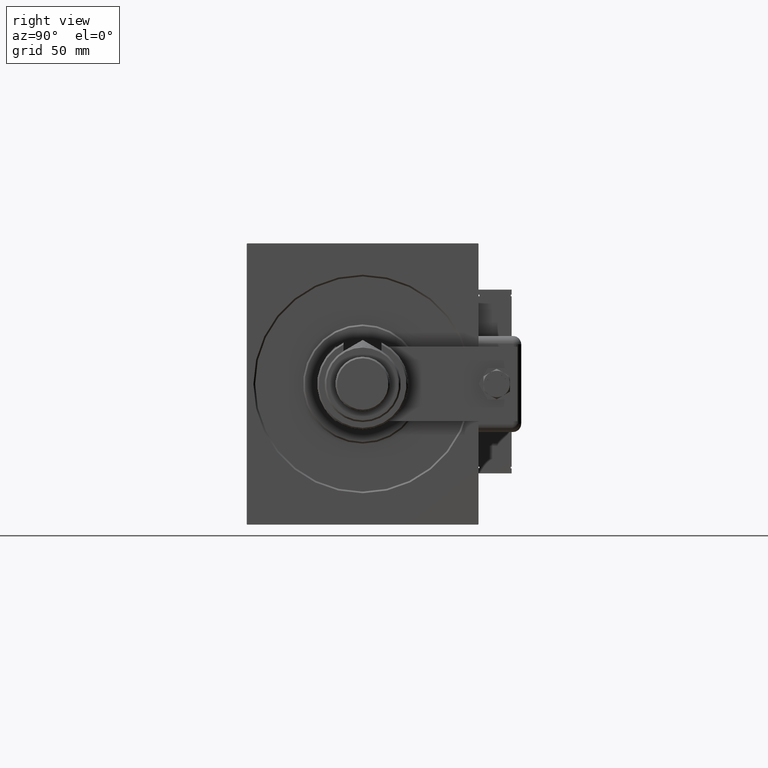
[diagram: clean part render]
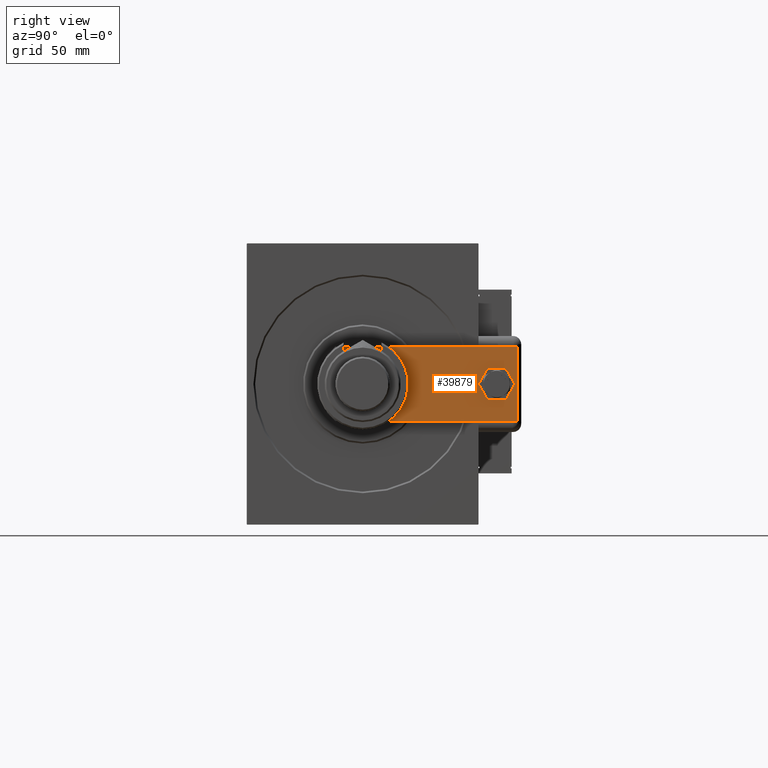
[diagram: same view with one face highlighted and labeled with its STEP entity id]
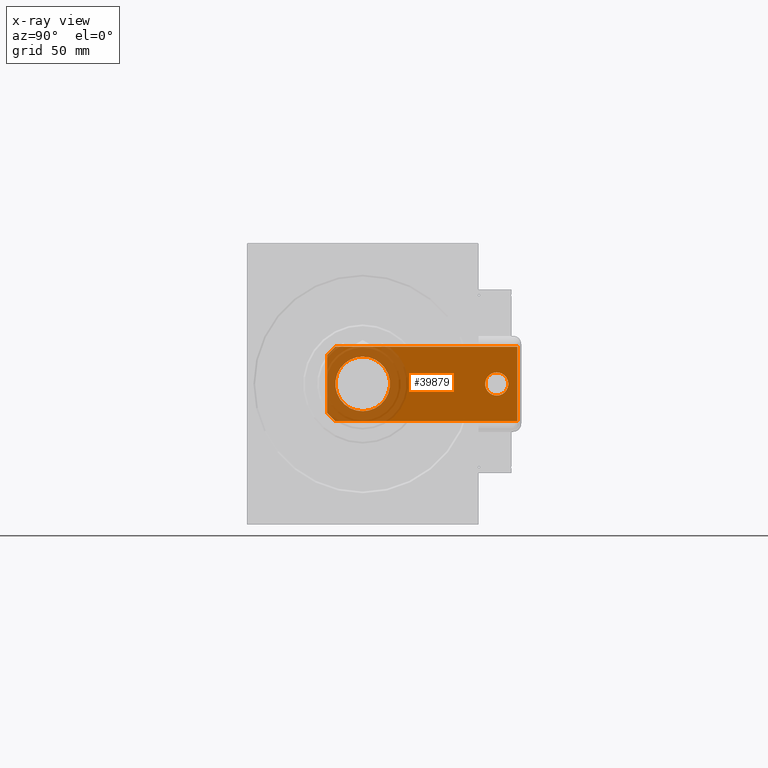
[diagram: x-ray of the same camera — body ghosted, the highlighted face saturated]
A machine part, right view. The second image highlights one B-rep face of the part: STEP entity #39879.
The next image is the same camera in x-ray: the body ghosted, the highlighted face saturated — about 28% of this face is hidden behind the body in this view.
In plain terms, the highlighted planar face has unit normal (-1, 0, 0).
Its self-contained STEP definition (entity closure, byte-faithful):
#1546 = ORIENTED_EDGE ( 'NONE', *, *, #56429, .F. ) ;
#2515 = EDGE_CURVE ( 'NONE', #20984, #60280, #4227, .T. ) ;
#4227 = CIRCLE ( 'NONE', #59901, 16.50000000000000000 ) ;
#4999 = EDGE_CURVE ( 'NONE', #31560, #60893, #5644, .T. ) ;
#5644 = LINE ( 'NONE', #15295, #40098 ) ;
#6050 = ORIENTED_EDGE ( 'NONE', *, *, #18612, .T. ) ;
#6167 = DIRECTION ( 'NONE',  ( 0.000000000000000000, 0.000000000000000000, 1.000000000000000000 ) ) ;
#6882 = VECTOR ( 'NONE', #52410, 1000.000000000000114 ) ;
#7339 = CARTESIAN_POINT ( 'NONE',  ( 7.000000000000000000, 102.5000000000000142, 0.000000000000000000 ) ) ;
#7696 = VERTEX_POINT ( 'NONE', #7339 ) ;
#7808 = EDGE_LOOP ( 'NONE', ( #6050, #15698 ) ) ;
#8807 = CARTESIAN_POINT ( 'NONE',  ( -17.50000000000000355, 0.000000000000000000, 0.000000000000000000 ) ) ;
#9616 = DIRECTION ( 'NONE',  ( 1.000000000000000000, 0.000000000000000000, 0.000000000000000000 ) ) ;
#9797 = VECTOR ( 'NONE', #19255, 1000.000000000000000 ) ;
#10104 = CIRCLE ( 'NONE', #15085, 7.000000000000000000 ) ;
#10633 = DIRECTION ( 'NONE',  ( -9.050731179009427836E-17, 1.000000000000000000, 0.000000000000000000 ) ) ;
#10839 = LINE ( 'NONE', #34479, #9797 ) ;
#10850 = PLANE ( 'NONE',  #49924 ) ;
#11503 = VECTOR ( 'NONE', #14786, 1000.000000000000000 ) ;
#11566 = LINE ( 'NONE', #38937, #49972 ) ;
#13465 = CARTESIAN_POINT ( 'NONE',  ( -22.50000000000000355, 115.0000000000000000, 0.000000000000000000 ) ) ;
#14661 = CIRCLE ( 'NONE', #32551, 16.50000000000000000 ) ;
#14786 = DIRECTION ( 'NONE',  ( -1.000000000000000000, 0.000000000000000000, 0.000000000000000000 ) ) ;
#15058 = CARTESIAN_POINT ( 'NONE',  ( -7.000000000000000000, 102.5000000000000142, 0.000000000000000000 ) ) ;
#15085 = AXIS2_PLACEMENT_3D ( 'NONE', #30788, #54169, #44188 ) ;
#15295 = CARTESIAN_POINT ( 'NONE',  ( -22.50000000000000355, 115.0000000000000000, 0.000000000000000000 ) ) ;
#15558 = DIRECTION ( 'NONE',  ( 1.000000000000000000, 0.000000000000000000, 0.000000000000000000 ) ) ;
#15698 = ORIENTED_EDGE ( 'NONE', *, *, #31305, .T. ) ;
#17247 = VERTEX_POINT ( 'NONE', #15058 ) ;
#18612 = EDGE_CURVE ( 'NONE', #17247, #7696, #10104, .T. ) ;
#18623 = CARTESIAN_POINT ( 'NONE',  ( 22.50000000000000000, 115.0000000000000000, 0.000000000000000000 ) ) ;
#19255 = DIRECTION ( 'NONE',  ( 1.000000000000000000, 0.000000000000000000, 0.000000000000000000 ) ) ;
#20335 = LINE ( 'NONE', #42742, #6882 ) ;
#20934 = CARTESIAN_POINT ( 'NONE',  ( -17.50000000000000355, 0.000000000000000000, 0.000000000000000000 ) ) ;
#20984 = VERTEX_POINT ( 'NONE', #49710 ) ;
#21162 = CARTESIAN_POINT ( 'NONE',  ( 0.000000000000000000, 21.50000000000000355, 0.000000000000000000 ) ) ;
#24040 = LINE ( 'NONE', #8807, #60042 ) ;
#24103 = VERTEX_POINT ( 'NONE', #36050 ) ;
#24554 = FACE_BOUND ( 'NONE', #7808, .T. ) ;
#24782 = EDGE_CURVE ( 'NONE', #60280, #20984, #14661, .T. ) ;
#25162 = FACE_BOUND ( 'NONE', #52326, .T. ) ;
#26085 = CARTESIAN_POINT ( 'NONE',  ( 1.963948872468190046E-17, 102.5000000000000142, 0.000000000000000000 ) ) ;
#26869 = AXIS2_PLACEMENT_3D ( 'NONE', #26085, #6167, #50046 ) ;
#27686 = EDGE_CURVE ( 'NONE', #48665, #24103, #10839, .T. ) ;
#29612 = EDGE_CURVE ( 'NONE', #46587, #24103, #20335, .T. ) ;
#29809 = FACE_OUTER_BOUND ( 'NONE', #35674, .T. ) ;
#30788 = CARTESIAN_POINT ( 'NONE',  ( 1.963948872468190046E-17, 102.5000000000000142, 0.000000000000000000 ) ) ;
#31305 = EDGE_CURVE ( 'NONE', #7696, #17247, #57678, .T. ) ;
#31560 = VERTEX_POINT ( 'NONE', #13465 ) ;
#32551 = AXIS2_PLACEMENT_3D ( 'NONE', #21162, #44491, #15558 ) ;
#33561 = DIRECTION ( 'NONE',  ( -0.000000000000000000, 0.000000000000000000, 1.000000000000000000 ) ) ;
#34029 = ORIENTED_EDGE ( 'NONE', *, *, #44018, .T. ) ;
#34479 = CARTESIAN_POINT ( 'NONE',  ( -22.50000000000001066, 0.000000000000000000, 0.000000000000000000 ) ) ;
#35674 = EDGE_LOOP ( 'NONE', ( #49593, #34029, #55676, #1546, #53818, #57268 ) ) ;
#36050 = CARTESIAN_POINT ( 'NONE',  ( 17.49999999999997868, 0.000000000000000000, 0.000000000000000000 ) ) ;
#36369 = DIRECTION ( 'NONE',  ( 1.000000000000000000, 0.000000000000000000, 0.000000000000000000 ) ) ;
#38329 = CARTESIAN_POINT ( 'NONE',  ( 16.50000000000000000, 21.50000000000000711, 0.000000000000000000 ) ) ;
#38937 = CARTESIAN_POINT ( 'NONE',  ( 22.50000000000001066, 0.000000000000000000, 0.000000000000000000 ) ) ;
#39879 = ADVANCED_FACE ( 'NONE', ( #29809, #24554, #25162 ), #10850, .F. ) ;
#40098 = VECTOR ( 'NONE', #54210, 1000.000000000000000 ) ;
#40942 = EDGE_CURVE ( 'NONE', #46587, #56926, #11566, .T. ) ;
#41366 = CARTESIAN_POINT ( 'NONE',  ( 0.000000000000000000, 21.50000000000000355, 0.000000000000000000 ) ) ;
#42742 = CARTESIAN_POINT ( 'NONE',  ( 22.50000000000001066, 5.000000000000004441, 0.000000000000000000 ) ) ;
#43024 = DIRECTION ( 'NONE',  ( -0.7071067811865455743, 0.7071067811865493491, -0.000000000000000000 ) ) ;
#43533 = CARTESIAN_POINT ( 'NONE',  ( 0.000000000000000000, 0.000000000000000000, 0.000000000000000000 ) ) ;
#44018 = EDGE_CURVE ( 'NONE', #48665, #60893, #24040, .T. ) ;
#44188 = DIRECTION ( 'NONE',  ( 1.000000000000000000, 0.000000000000000000, 0.000000000000000000 ) ) ;
#44491 = DIRECTION ( 'NONE',  ( 0.000000000000000000, 0.000000000000000000, 1.000000000000000000 ) ) ;
#46587 = VERTEX_POINT ( 'NONE', #57317 ) ;
#47451 = CARTESIAN_POINT ( 'NONE',  ( 22.50000000000000000, 115.0000000000000000, 0.000000000000000000 ) ) ;
#48066 = LINE ( 'NONE', #47451, #11503 ) ;
#48665 = VERTEX_POINT ( 'NONE', #20934 ) ;
#49593 = ORIENTED_EDGE ( 'NONE', *, *, #27686, .F. ) ;
#49710 = CARTESIAN_POINT ( 'NONE',  ( -16.50000000000000000, 21.50000000000000355, 0.000000000000000000 ) ) ;
#49924 = AXIS2_PLACEMENT_3D ( 'NONE', #43533, #33561, #9616 ) ;
#49972 = VECTOR ( 'NONE', #10633, 1000.000000000000000 ) ;
#50046 = DIRECTION ( 'NONE',  ( 1.000000000000000000, 0.000000000000000000, 0.000000000000000000 ) ) ;
#52326 = EDGE_LOOP ( 'NONE', ( #58026, #52562 ) ) ;
#52410 = DIRECTION ( 'NONE',  ( -0.7071067811865493491, -0.7071067811865455743, -0.000000000000000000 ) ) ;
#52562 = ORIENTED_EDGE ( 'NONE', *, *, #24782, .T. ) ;
#53818 = ORIENTED_EDGE ( 'NONE', *, *, #40942, .F. ) ;
#54169 = DIRECTION ( 'NONE',  ( 0.000000000000000000, 0.000000000000000000, 1.000000000000000000 ) ) ;
#54210 = DIRECTION ( 'NONE',  ( -6.033820786006285224E-17, -1.000000000000000000, 0.000000000000000000 ) ) ;
#55676 = ORIENTED_EDGE ( 'NONE', *, *, #4999, .F. ) ;
#56429 = EDGE_CURVE ( 'NONE', #56926, #31560, #48066, .T. ) ;
#56815 = CARTESIAN_POINT ( 'NONE',  ( -22.50000000000001066, 5.000000000000031974, 0.000000000000000000 ) ) ;
#56926 = VERTEX_POINT ( 'NONE', #18623 ) ;
#57268 = ORIENTED_EDGE ( 'NONE', *, *, #29612, .T. ) ;
#57317 = CARTESIAN_POINT ( 'NONE',  ( 22.50000000000001066, 5.000000000000003553, 0.000000000000000000 ) ) ;
#57678 = CIRCLE ( 'NONE', #26869, 7.000000000000000000 ) ;
#58026 = ORIENTED_EDGE ( 'NONE', *, *, #2515, .T. ) ;
#59755 = DIRECTION ( 'NONE',  ( 0.000000000000000000, 0.000000000000000000, 1.000000000000000000 ) ) ;
#59901 = AXIS2_PLACEMENT_3D ( 'NONE', #41366, #59755, #36369 ) ;
#60042 = VECTOR ( 'NONE', #43024, 1000.000000000000114 ) ;
#60280 = VERTEX_POINT ( 'NONE', #38329 ) ;
#60893 = VERTEX_POINT ( 'NONE', #56815 ) ;